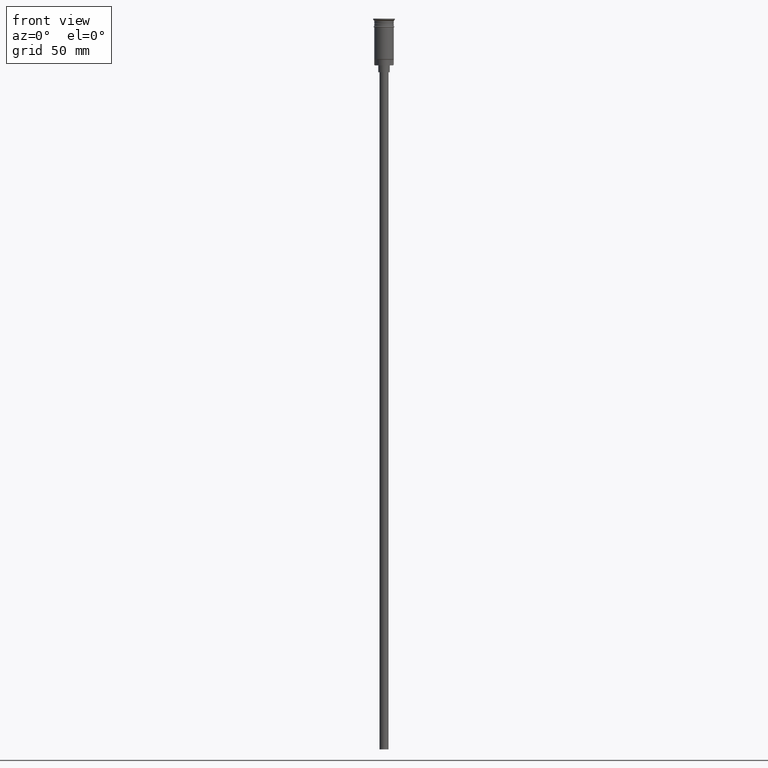
[diagram: clean part render]
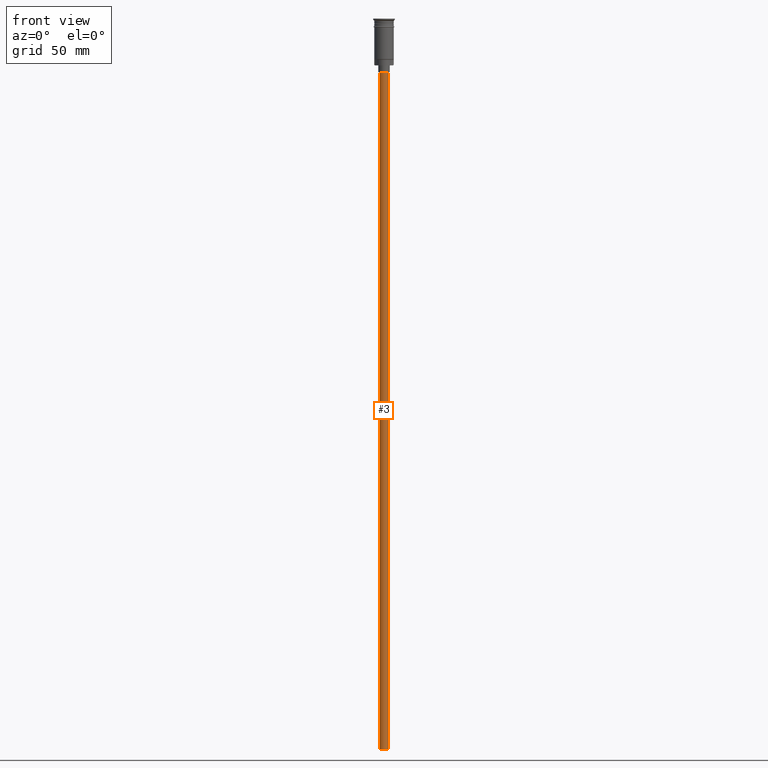
[diagram: same view with one face highlighted and labeled with its STEP entity id]
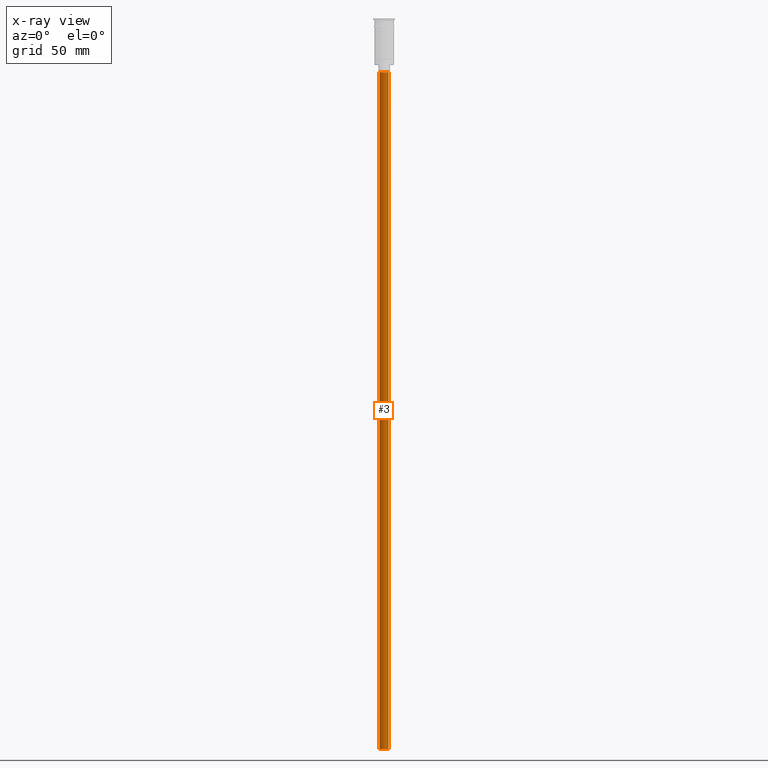
[diagram: x-ray of the same camera — body ghosted, the highlighted face saturated]
A machine part, front view. The second image highlights one B-rep face of the part: STEP entity #3.
The next image is the same camera in x-ray: the body ghosted, the highlighted face saturated — about 0% of this face is hidden behind the body in this view.
In plain terms, the highlighted cylindrical surface (edge-blend (fillet) strip) has radius 2 mm, axis along (-0, -0, 1).
Its self-contained STEP definition (entity closure, byte-faithful):
#3 = ADVANCED_FACE ( 'NONE', ( #1506 ), #987, .T. ) ;
#43 = DIRECTION ( 'NONE',  ( 0.000000000000000000, 0.000000000000000000, -1.000000000000000000 ) ) ;
#45 = DIRECTION ( 'NONE',  ( -0.000000000000000000, -0.000000000000000000, 1.000000000000000000 ) ) ;
#65 = CARTESIAN_POINT ( 'NONE',  ( -2.000000000000000000, 2.449293598294706414E-16, -23.49999999999999645 ) ) ;
#75 = EDGE_CURVE ( 'NONE', #910, #773, #420, .T. ) ;
#108 = VECTOR ( 'NONE', #1550, 1000.000000000000000 ) ;
#208 = DIRECTION ( 'NONE',  ( -1.000000000000000000, 0.000000000000000000, 0.000000000000000000 ) ) ;
#210 = CARTESIAN_POINT ( 'NONE',  ( 2.000000000000000000, 0.000000000000000000, -23.49999999999999645 ) ) ;
#247 = DIRECTION ( 'NONE',  ( 1.000000000000000000, 0.000000000000000000, 0.000000000000000000 ) ) ;
#339 = VERTEX_POINT ( 'NONE', #689 ) ;
#371 = CIRCLE ( 'NONE', #1069, 2.000000000000000000 ) ;
#420 = LINE ( 'NONE', #1284, #809 ) ;
#523 = CARTESIAN_POINT ( 'NONE',  ( 0.000000000000000000, 0.000000000000000000, -23.49999999999999645 ) ) ;
#532 = CARTESIAN_POINT ( 'NONE',  ( -2.000000000000000000, 2.449293598294706414E-16, -320.5000000000000000 ) ) ;
#577 = EDGE_CURVE ( 'NONE', #773, #1199, #1408, .T. ) ;
#689 = CARTESIAN_POINT ( 'NONE',  ( -2.000000000000000000, 2.449293598294706414E-16, -320.5000000000000000 ) ) ;
#764 = CARTESIAN_POINT ( 'NONE',  ( 0.000000000000000000, 0.000000000000000000, -320.5000000000000000 ) ) ;
#773 = VERTEX_POINT ( 'NONE', #210 ) ;
#796 = EDGE_CURVE ( 'NONE', #339, #1199, #1344, .T. ) ;
#809 = VECTOR ( 'NONE', #45, 1000.000000000000000 ) ;
#814 = ORIENTED_EDGE ( 'NONE', *, *, #75, .T. ) ;
#821 = CARTESIAN_POINT ( 'NONE',  ( 2.000000000000000000, 0.000000000000000000, -320.5000000000000000 ) ) ;
#823 = CARTESIAN_POINT ( 'NONE',  ( 0.000000000000000000, 0.000000000000000000, -320.5000000000000000 ) ) ;
#850 = ORIENTED_EDGE ( 'NONE', *, *, #1367, .F. ) ;
#910 = VERTEX_POINT ( 'NONE', #821 ) ;
#987 = CYLINDRICAL_SURFACE ( 'NONE', #1602, 2.000000000000000000 ) ;
#1019 = DIRECTION ( 'NONE',  ( -1.000000000000000000, 0.000000000000000000, 0.000000000000000000 ) ) ;
#1069 = AXIS2_PLACEMENT_3D ( 'NONE', #823, #1324, #208 ) ;
#1113 = EDGE_LOOP ( 'NONE', ( #1245, #850, #814, #1121 ) ) ;
#1121 = ORIENTED_EDGE ( 'NONE', *, *, #577, .T. ) ;
#1199 = VERTEX_POINT ( 'NONE', #65 ) ;
#1245 = ORIENTED_EDGE ( 'NONE', *, *, #796, .F. ) ;
#1284 = CARTESIAN_POINT ( 'NONE',  ( 2.000000000000000000, 0.000000000000000000, -320.5000000000000000 ) ) ;
#1324 = DIRECTION ( 'NONE',  ( 0.000000000000000000, 0.000000000000000000, -1.000000000000000000 ) ) ;
#1344 = LINE ( 'NONE', #532, #108 ) ;
#1367 = EDGE_CURVE ( 'NONE', #910, #339, #371, .T. ) ;
#1408 = CIRCLE ( 'NONE', #1582, 2.000000000000000000 ) ;
#1483 = DIRECTION ( 'NONE',  ( -0.000000000000000000, -0.000000000000000000, 1.000000000000000000 ) ) ;
#1506 = FACE_OUTER_BOUND ( 'NONE', #1113, .T. ) ;
#1550 = DIRECTION ( 'NONE',  ( -0.000000000000000000, -0.000000000000000000, 1.000000000000000000 ) ) ;
#1582 = AXIS2_PLACEMENT_3D ( 'NONE', #523, #43, #1019 ) ;
#1602 = AXIS2_PLACEMENT_3D ( 'NONE', #764, #1483, #247 ) ;